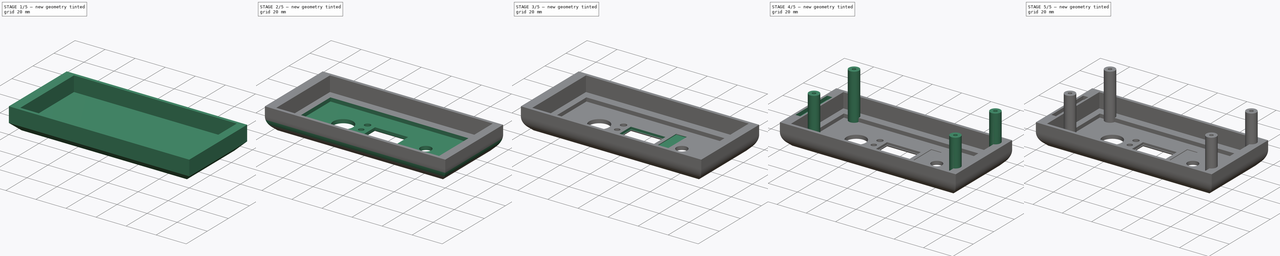
[diagram: build sequence overview — one tinted view per stage of 5, left to right]
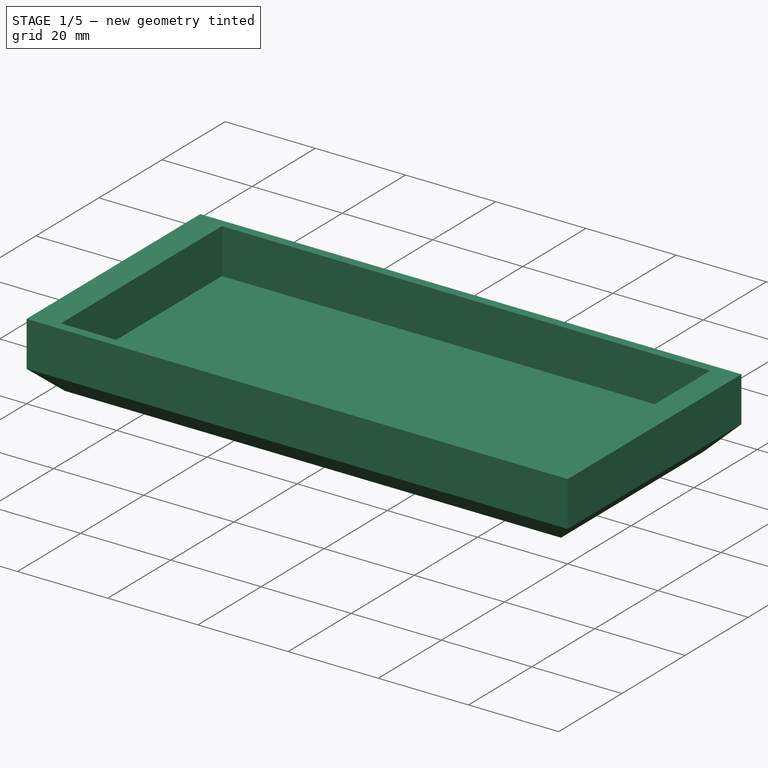
[diagram: stage 1 of 5 — iso view after this stage's code; geometry added in this stage tinted green]
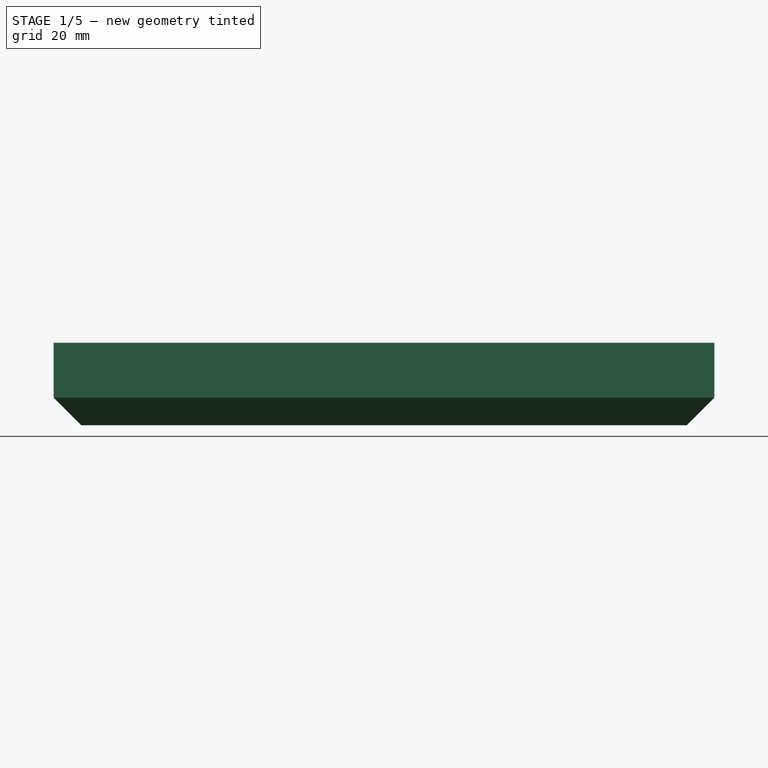
[diagram: stage 1 of 5 — front view after this stage's code; geometry added in this stage tinted green]
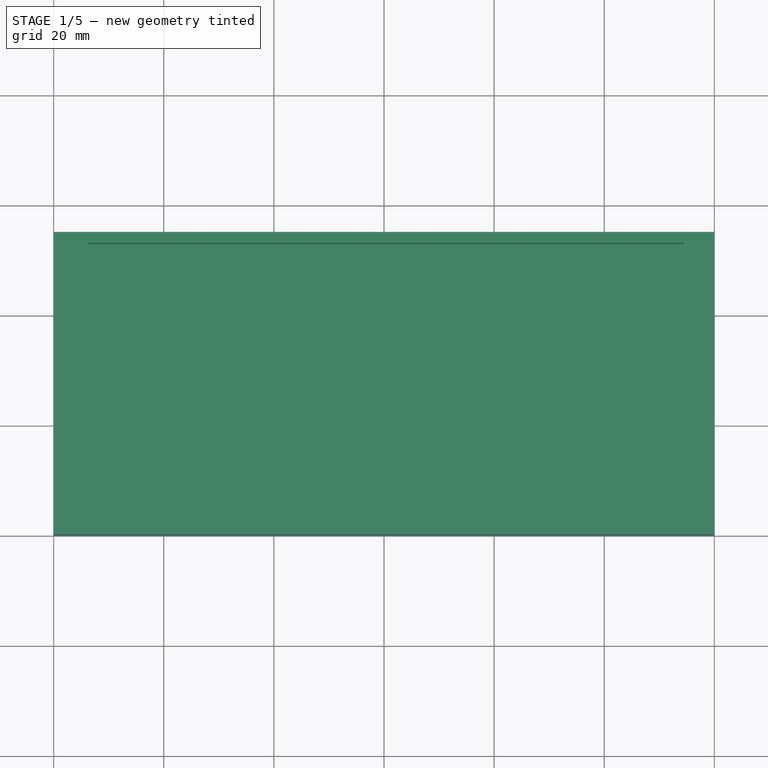
[diagram: stage 1 of 5 — top view after this stage's code; geometry added in this stage tinted green]
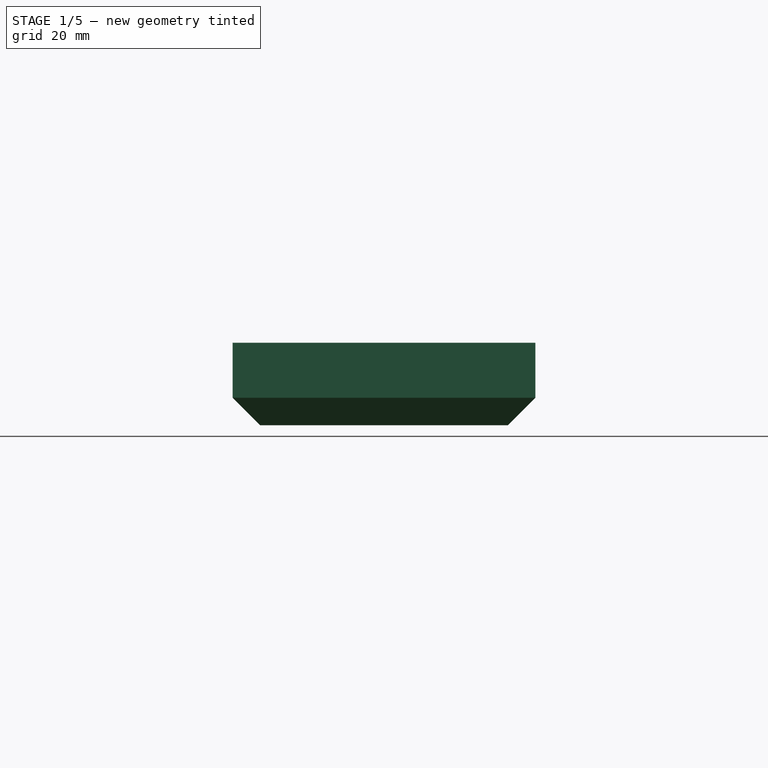
[diagram: stage 1 of 5 — right view after this stage's code; geometry added in this stage tinted green]
FCSTD DOCUMENT  (FreeCAD 0.16R6712 (Git))
Label: bolex_t12_top
License: All rights reserved
LicenseURL: http://en.wikipedia.org/wiki/All_rights_reserved
objects: Sketcher::SketchObject×9, PartDesign::Pocket×8, PartDesign::Fillet×3, PartDesign::Chamfer×2, Part::Box×1, PartDesign::Pad×1, Part::Part2DObjectPython×1, Part::Extrusion×1, Part::Cut×1
note: 36 computed .brp shape members not serialized (recipe doc carries the construction recipe); baked Part::Feature solids carry a one-line shape summary decoded from their .brp

FEATURE [Part::Box] Box  label="Cubo"
  Height = 15
  Length = 120
  Width = 55
FEATURE [Sketcher::SketchObject] Sketch
  Placement = pos=(0,0,15) rot=(0,0,1;0rad)
  Support = -> Box [Face6]
  sketch-geometry (17):
    g0: LineSegment [constr] StartX=0 StartY=40 StartZ=0 EndX=1.5 EndY=40 EndZ=0
    g1: LineSegment [constr] StartX=1.5 StartY=40 StartZ=0 EndX=1.5 EndY=42 EndZ=0
    g2: LineSegment [constr] StartX=1.5 StartY=42 StartZ=0 EndX=5 EndY=42 EndZ=0
    g3: LineSegment [constr] StartX=5 StartY=42 StartZ=0 EndX=5 EndY=40 EndZ=0
    g4: LineSegment [constr] StartX=5 StartY=40 StartZ=0 EndX=6.2 EndY=40 EndZ=0
    g5: LineSegment StartX=6.2 StartY=40 StartZ=0 EndX=6.2 EndY=53 EndZ=0
    g6: LineSegment StartX=6.2 StartY=53 StartZ=0 EndX=114.5 EndY=53 EndZ=0
    g7: LineSegment StartX=114.5 StartY=53 StartZ=0 EndX=114.5 EndY=2 EndZ=0
    g8: LineSegment StartX=114.5 StartY=2 StartZ=0 EndX=6.2 EndY=2 EndZ=0
    g9: LineSegment StartX=6.2 StartY=2 StartZ=0 EndX=6.2 EndY=13 EndZ=0
    g10: LineSegment [constr] StartX=6.2 StartY=13 StartZ=0 EndX=5 EndY=13 EndZ=0
    g11: LineSegment [constr] StartX=5 StartY=13 StartZ=0 EndX=5 EndY=11 EndZ=0
    g12: LineSegment [constr] StartX=5 StartY=11 StartZ=0 EndX=1.5 EndY=11 EndZ=0
    g13: LineSegment [constr] StartX=1.5 StartY=11 StartZ=0 EndX=1.5 EndY=13 EndZ=0
    g14: LineSegment [constr] StartX=1.5 StartY=13 StartZ=0 EndX=0 EndY=13 EndZ=0
    g15: LineSegment [constr] StartX=0 StartY=13 StartZ=0 EndX=0 EndY=40 EndZ=0
    g16: LineSegment StartX=6.2 StartY=40 StartZ=0 EndX=6.2 EndY=13 EndZ=0
  constraints (50):
    c: PointOnObject(g0,g-2)
    c: Horizontal(g0)
    c: Coincident(g0,g1)
    c: Vertical(g1)
    c: Coincident(g1,g2)
    c: Horizontal(g2)
    c: Coincident(g2,g3)
    c: Vertical(g3)
    c: Coincident(g3,g4)
    c: Horizontal(g4)
    c: Coincident(g4,g5)
    c: Vertical(g5)
    c: Coincident(g5,g6)
    c: Horizontal(g6)
    c: Coincident(g6,g7)
    c: Vertical(g7)
    c: Coincident(g7,g8)
    c: Horizontal(g8)
    c: Coincident(g8,g9)
    c: Vertical(g9)
    c: Coincident(g9,g10)
    c: Horizontal(g10)
    c: Coincident(g10,g11)
    c: Vertical(g11)
    c: Coincident(g11,g12)
    c: Horizontal(g12)
    c: Coincident(g12,g13)
    c: Vertical(g13)
    c: Coincident(g13,g14)
    c: Horizontal(g14)
    c: Coincident(g14,g15)
    c: Coincident(g15,g0)
    c: Vertical(g15)
    c: Equal(g13,g1)
    c: Equal(g1,g3)
    c: Equal(g3,g11)
    c: Equal(g2,g12)
    c: DistanceX(g2,g2) = 3.5
    c: DistanceY(g15,g15) = 27
    c: DistanceY(g12,g1) = 31
    c: DistanceX(g14,g14) = 1.5
    c: Equal(g0,g14)
    c: DistanceY(g-1,g14) = 13
    c: Equal(g10,g4)
    c: DistanceY(g7,g7) = 51
    c: DistanceX(g4,g4) = 1.2
    c: DistanceY(g9,g9) = 11
    c: DistanceX(g12,g7) = 113
    c: Coincident(g16,g4)
    c: Coincident(g16,g9)
FEATURE [PartDesign::Pocket] Pocket
  Length = 10
  Sketch = -> Sketch
  Type = 0
FEATURE [PartDesign::Chamfer] Chamfer
  Base = -> Pocket [Edge4,Edge14,Edge16,Edge5]
  Size = 5
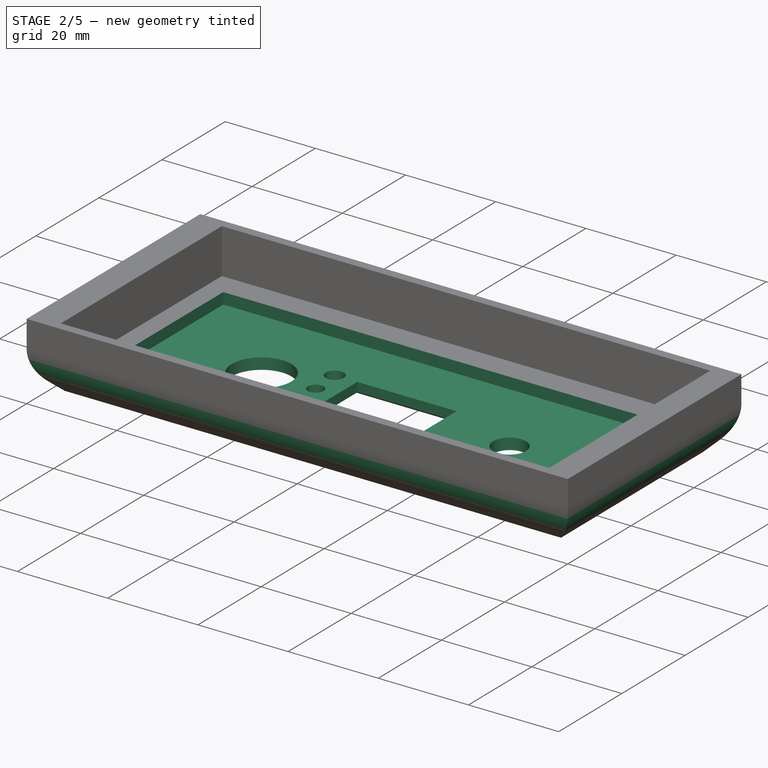
[diagram: stage 2 of 5 — iso view after this stage's code; geometry added in this stage tinted green]
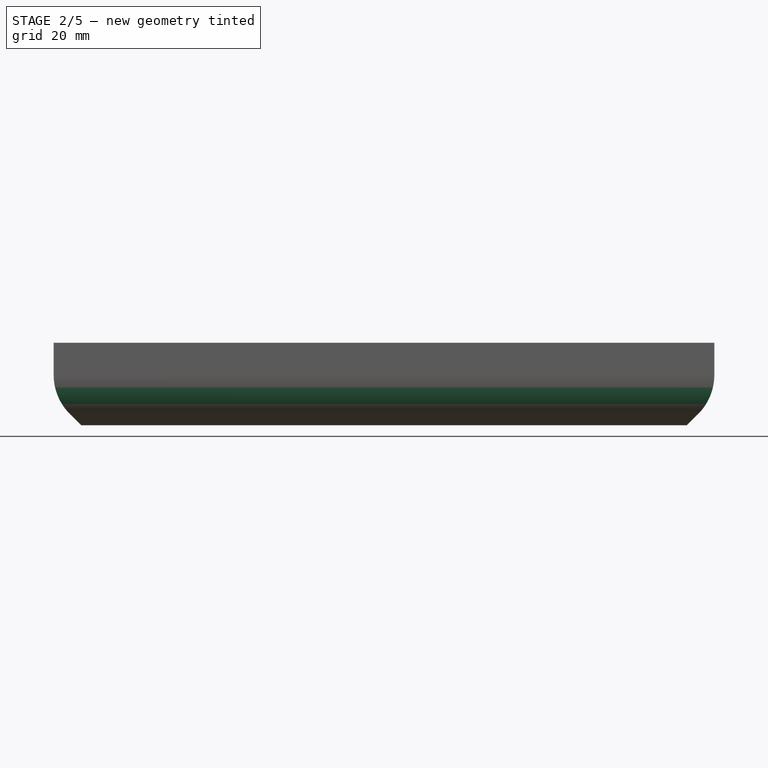
[diagram: stage 2 of 5 — front view after this stage's code; geometry added in this stage tinted green]
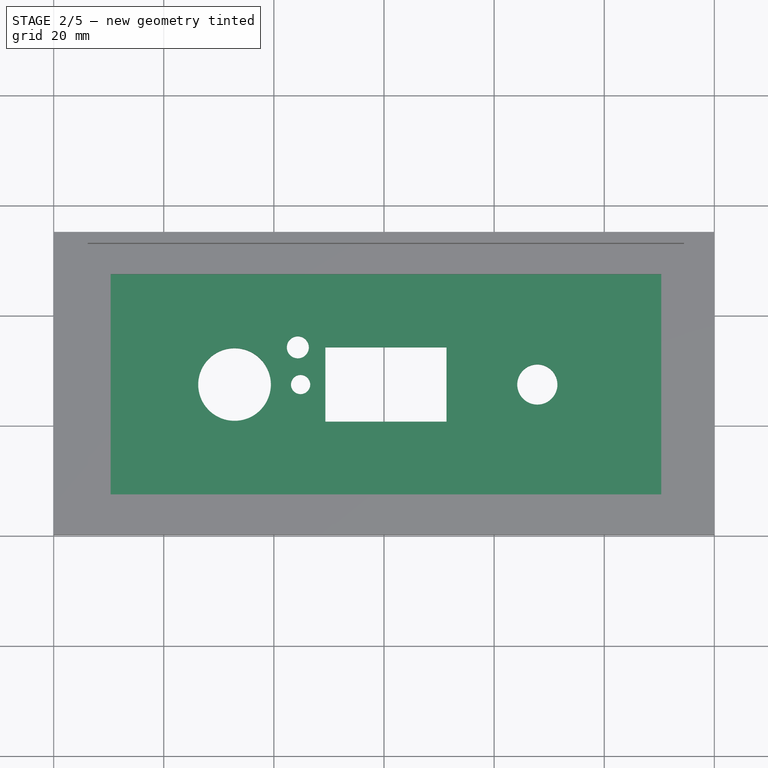
[diagram: stage 2 of 5 — top view after this stage's code; geometry added in this stage tinted green]
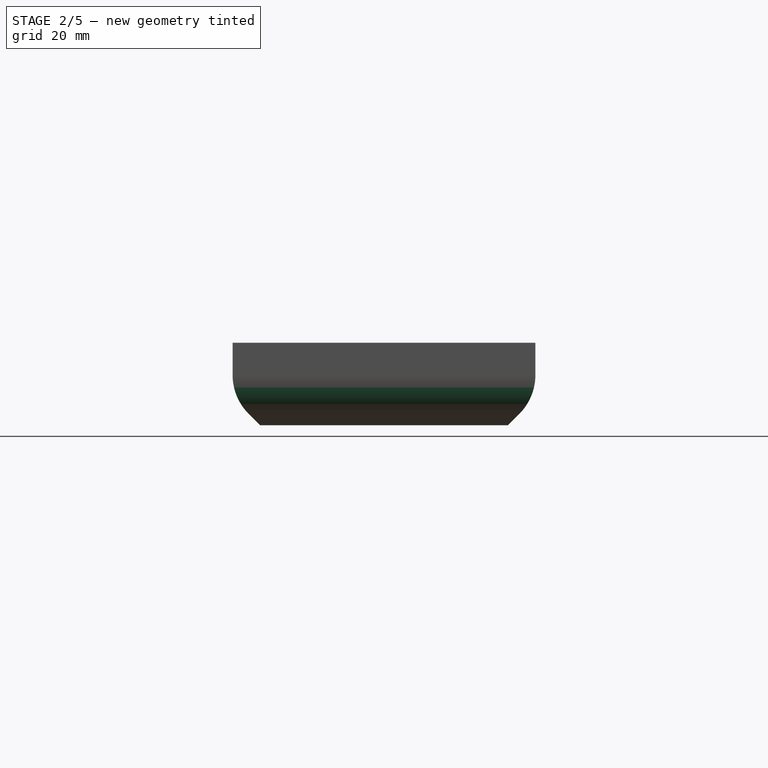
[diagram: stage 2 of 5 — right view after this stage's code; geometry added in this stage tinted green]
FEATURE [PartDesign::Fillet] Fillet
  Base = -> Chamfer [Edge6,Edge2,Edge18,Edge19]
  Radius = 10
FEATURE [Sketcher::SketchObject] Sketch001
  ExternalGeometry = -> [Fillet]
  Placement = pos=(0,0,5) rot=(0,0,1;0rad)
  Support = -> Fillet [Face18]
  sketch-geometry (13):
    g0: LineSegment StartX=49.35 StartY=34.25 StartZ=0 EndX=71.35 EndY=34.25 EndZ=0
    g1: LineSegment StartX=71.35 StartY=34.25 StartZ=0 EndX=71.35 EndY=20.75 EndZ=0
    g2: LineSegment StartX=71.35 StartY=20.75 StartZ=0 EndX=49.35 EndY=20.75 EndZ=0
    g3: LineSegment StartX=49.35 StartY=20.75 StartZ=0 EndX=49.35 EndY=34.25 EndZ=0
    g4: LineSegment [constr] StartX=6.2 StartY=53 StartZ=0 EndX=49.35 EndY=34.25 EndZ=0
    g5: LineSegment [constr] StartX=71.35 StartY=20.75 StartZ=0 EndX=114.5 EndY=2 EndZ=0
    g6: LineSegment [constr] StartX=0 StartY=27.5 StartZ=0 EndX=120 EndY=27.5 EndZ=0
    g7: Circle CenterX=32.85 CenterY=27.5 CenterZ=0 NormalX=0 NormalY=0 NormalZ=1 Radius=6.6
    g8: Circle CenterX=87.85 CenterY=27.5 CenterZ=0 NormalX=0 NormalY=0 NormalZ=1 Radius=3.65
    g9: LineSegment [constr] StartX=32.85 StartY=27.5 StartZ=0 EndX=49.35 EndY=34.25 EndZ=0
    g10: LineSegment [constr] StartX=71.35 StartY=34.25 StartZ=0 EndX=87.85 EndY=27.5 EndZ=0
    g11: Circle CenterX=44.85 CenterY=27.5 CenterZ=0 NormalX=0 NormalY=0 NormalZ=1 Radius=1.75
    g12: Circle CenterX=44.35 CenterY=34.25 CenterZ=0 NormalX=0 NormalY=0 NormalZ=1 Radius=2
  constraints (36):
    c: Coincident(g0,g1)
    c: Coincident(g1,g2)
    c: Coincident(g2,g3)
    c: Coincident(g3,g0)
    c: Horizontal(g0)
    c: Horizontal(g2)
    c: Vertical(g1)
    c: Vertical(g3)
    c: DistanceX(g0,g0) = 22  '14,5'
    c: DistanceY(g3,g3) = 13.5
    c: Coincident(g4,g-3)
    c: Coincident(g4,g0)
    c: Coincident(g5,g1)
    c: Coincident(g5,g-4)
    c: Equal(g4,g5)
    c: Parallel(g4,g5)
    c: PointOnObject(g6,g-2)
    c: Horizontal(g6)
    c: DistanceX(g6,g6) = 120
    c: Symmetric(g2,g0,g6)
    c: PointOnObject(g7,g6)
    c: PointOnObject(g8,g6)
    c: Radius(g8) = 3.65
    c: Radius(g7) = 6.6
    c: DistanceX(g7,g8) = 55
    c: Coincident(g9,g7)
    c: Coincident(g9,g0)
    c: Coincident(g10,g0)
    c: Coincident(g10,g8)
    c: Equal(g9,g10)
    c: PointOnObject(g11,g6)
    c: Radius(g11) = 1.75
    c: DistanceX(g7,g11) = 12
    c: DistanceY(g11,g12) = 6.75
    c: DistanceX(g7,g12) = 11.5
    c: Radius(g12) = 2
FEATURE [PartDesign::Pocket] Pocket001
  Length = 5
  Sketch = -> Sketch001
  Type = 1
FEATURE [Sketcher::SketchObject] Sketch002
  ExternalGeometry = -> [Pocket001]
  Placement = pos=(0,0,5) rot=(0,0,1;0rad)
  Support = -> Pocket001 [Face18]
  sketch-geometry (6):
    g0: LineSegment StartX=10.35 StartY=47.5 StartZ=0 EndX=110.35 EndY=47.5 EndZ=0
    g1: LineSegment StartX=110.35 StartY=47.5 StartZ=0 EndX=110.35 EndY=7.5 EndZ=0
    g2: LineSegment StartX=110.35 StartY=7.5 StartZ=0 EndX=10.35 EndY=7.5 EndZ=0
    g3: LineSegment StartX=10.35 StartY=7.5 StartZ=0 EndX=10.35 EndY=47.5 EndZ=0
    g4: LineSegment [constr] StartX=6.2 StartY=2 StartZ=0 EndX=10.35 EndY=7.5 EndZ=0
    g5: LineSegment [constr] StartX=110.35 StartY=47.5 StartZ=0 EndX=114.5 EndY=53 EndZ=0
  constraints (16):
    c: Coincident(g0,g1)
    c: Coincident(g1,g2)
    c: Coincident(g2,g3)
    c: Coincident(g3,g0)
    c: Horizontal(g0)
    c: Horizontal(g2)
    c: Vertical(g1)
    c: Vertical(g3)
    c: DistanceX(g0,g0) = 100
    c: DistanceY(g1,g1) = 40
    c: Coincident(g4,g-3)
    c: Coincident(g4,g2)
    c: Coincident(g5,g0)
    c: Coincident(g5,g-4)
    c: Equal(g4,g5)
    c: Parallel(g5,g4)
FEATURE [PartDesign::Pocket] Pocket002
  Length = 2.5
  Sketch = -> Sketch002
  Type = 0
FEATURE [PartDesign::Chamfer] Chamfer001
  Base = -> Pocket002 [Edge44,Edge45,Edge41,Edge40,Edge43,Edge42]
  Size = 0.5
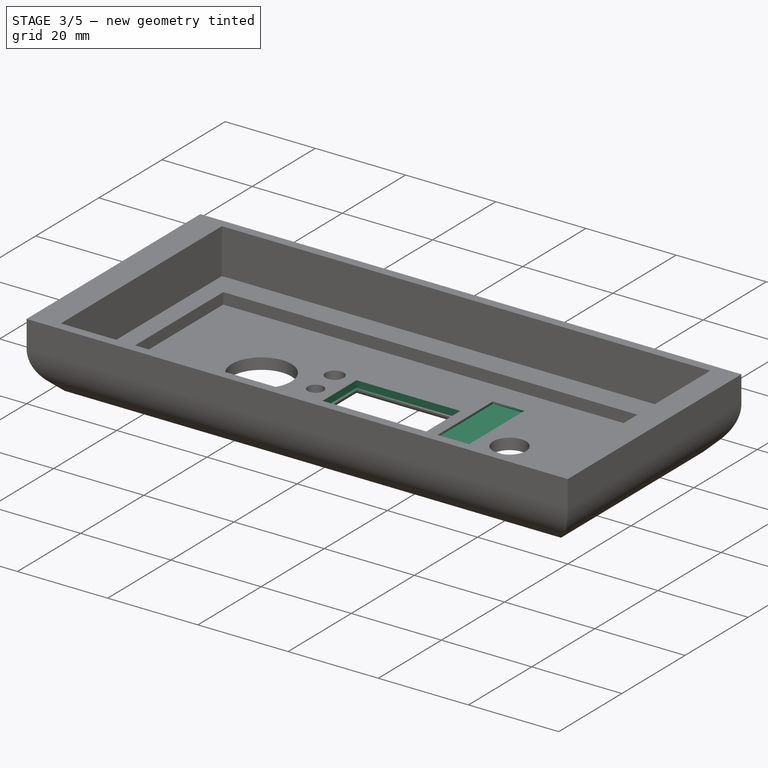
[diagram: stage 3 of 5 — iso view after this stage's code; geometry added in this stage tinted green]
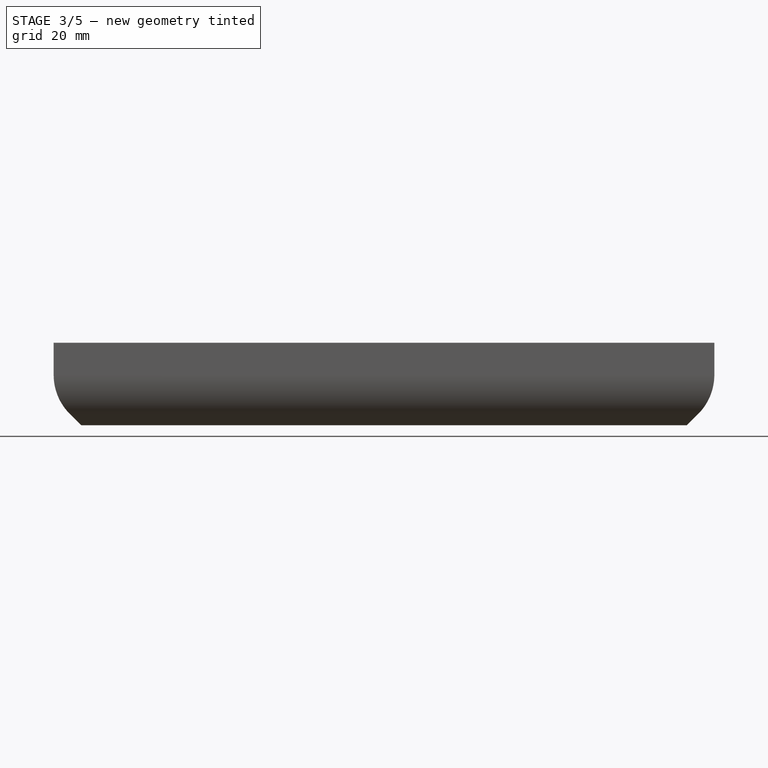
[diagram: stage 3 of 5 — front view after this stage's code; geometry added in this stage tinted green]
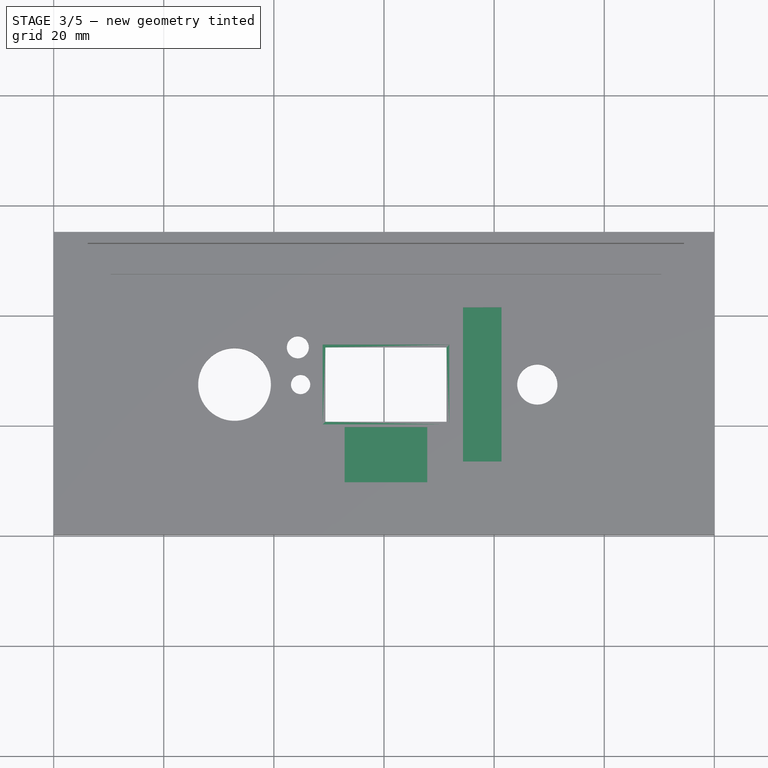
[diagram: stage 3 of 5 — top view after this stage's code; geometry added in this stage tinted green]
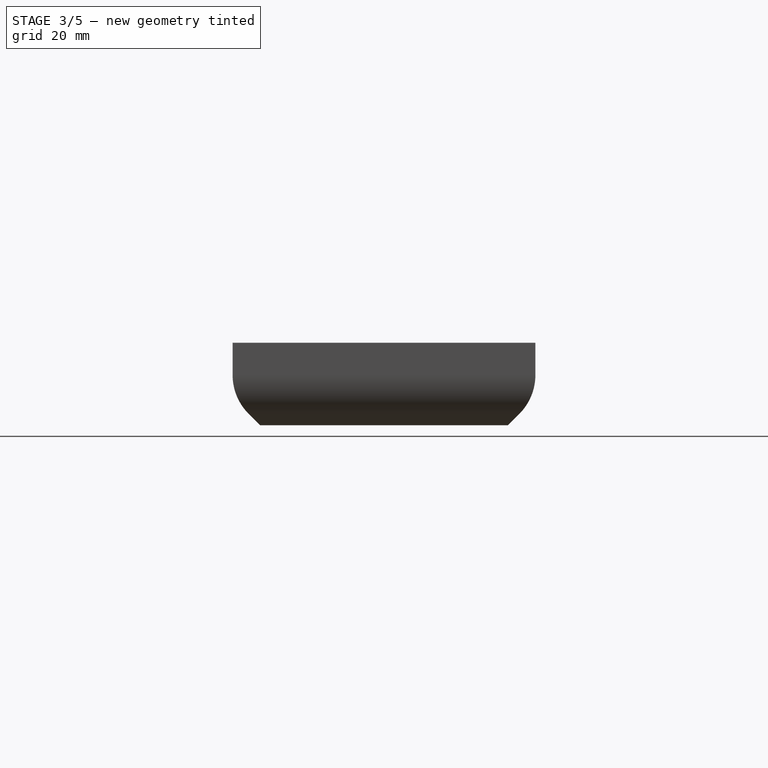
[diagram: stage 3 of 5 — right view after this stage's code; geometry added in this stage tinted green]
FEATURE [PartDesign::Fillet] Fillet001
  Base = -> Chamfer001 [Edge30,Edge34,Edge36,Edge33,Edge28,Edge14]
  Radius = 1
FEATURE [Sketcher::SketchObject] Sketch003
  ExternalGeometry = -> [Fillet001]
  Placement = pos=(0,0,2.5) rot=(0,0,1;0rad)
  Support = -> Fillet001 [Face16]
  sketch-geometry (6):
    g0: LineSegment StartX=48.85 StartY=34.75 StartZ=0 EndX=71.85 EndY=34.75 EndZ=0
    g1: LineSegment StartX=71.85 StartY=34.75 StartZ=0 EndX=71.85 EndY=20.25 EndZ=0
    g2: LineSegment StartX=71.85 StartY=20.25 StartZ=0 EndX=48.85 EndY=20.25 EndZ=0
    g3: LineSegment StartX=48.85 StartY=20.25 StartZ=0 EndX=48.85 EndY=34.75 EndZ=0
    g4: LineSegment [constr] StartX=49.35 StartY=34.25 StartZ=0 EndX=48.85 EndY=34.75 EndZ=0
    g5: LineSegment [constr] StartX=71.85 StartY=20.25 StartZ=0 EndX=71.35 EndY=20.75 EndZ=0
  constraints (16):
    c: Coincident(g0,g1)
    c: Coincident(g1,g2)
    c: Coincident(g2,g3)
    c: Coincident(g3,g0)
    c: Horizontal(g0)
    c: Horizontal(g2)
    c: Vertical(g1)
    c: Vertical(g3)
    c: DistanceX(g0,g0) = 23
    c: DistanceY(g1,g1) = 14.5
    c: Coincident(g4,g-3)
    c: Coincident(g4,g0)
    c: Coincident(g5,g1)
    c: Coincident(g5,g-4)
    c: Equal(g4,g5)
    c: Parallel(g5,g4)
FEATURE [PartDesign::Pocket] Pocket003
  Length = 1.5
  Sketch = -> Sketch003
  Type = 0
FEATURE [Sketcher::SketchObject] Sketch004
  ExternalGeometry = -> [Pocket003]
  Placement = pos=(0,0,2.5) rot=(0,0,1;0rad)
  Support = -> Pocket003 [Face16]
  sketch-geometry (10):
    g0: LineSegment StartX=52.85 StartY=19.75 StartZ=0 EndX=67.85 EndY=19.75 EndZ=0
    g1: LineSegment StartX=67.85 StartY=19.75 StartZ=0 EndX=67.85 EndY=9.75 EndZ=0
    g2: LineSegment StartX=67.85 StartY=9.75 StartZ=0 EndX=52.85 EndY=9.75 EndZ=0
    g3: LineSegment StartX=52.85 StartY=9.75 StartZ=0 EndX=52.85 EndY=19.75 EndZ=0
    g4: LineSegment StartX=74.35 StartY=41.5 StartZ=0 EndX=81.35 EndY=41.5 EndZ=0
    g5: LineSegment StartX=81.35 StartY=41.5 StartZ=0 EndX=81.35 EndY=13.5 EndZ=0
    g6: LineSegment StartX=81.35 StartY=13.5 StartZ=0 EndX=74.35 EndY=13.5 EndZ=0
    g7: LineSegment StartX=74.35 StartY=13.5 StartZ=0 EndX=74.35 EndY=41.5 EndZ=0
    g8: LineSegment [constr] StartX=52.85 StartY=19.75 StartZ=0 EndX=71.85 EndY=34.75 EndZ=0
    g9: LineSegment [constr] StartX=67.85 StartY=19.75 StartZ=0 EndX=48.85 EndY=34.75 EndZ=0
  constraints (28):
    c: Coincident(g0,g1)
    c: Coincident(g1,g2)
    c: Coincident(g2,g3)
    c: Coincident(g3,g0)
    c: Horizontal(g0)
    c: Horizontal(g2)
    c: Vertical(g1)
    c: Vertical(g3)
    c: Coincident(g4,g5)
    c: Coincident(g5,g6)
    c: Coincident(g6,g7)
    c: Coincident(g7,g4)
    c: Horizontal(g4)
    c: Horizontal(g6)
    c: Vertical(g5)
    c: Vertical(g7)
    c: DistanceX(g4,g4) = 7
    c: DistanceY(g7,g7) = 28
    c: DistanceX(g5,g-3) = 6.5
    c: DistanceY(g5,g-3) = 14
    c: DistanceY(g3,g3) = 10
    c: DistanceX(g0,g0) = 15
    c: Coincident(g8,g0)
    c: Coincident(g8,g-4)
    c: Coincident(g9,g0)
    c: Coincident(g9,g-4)
    c: Equal(g9,g8)
    c: DistanceY(g0,g8) = 15
FEATURE [PartDesign::Pocket] Pocket004
  Length = 0.5
  Sketch = -> Sketch004
  Type = 0
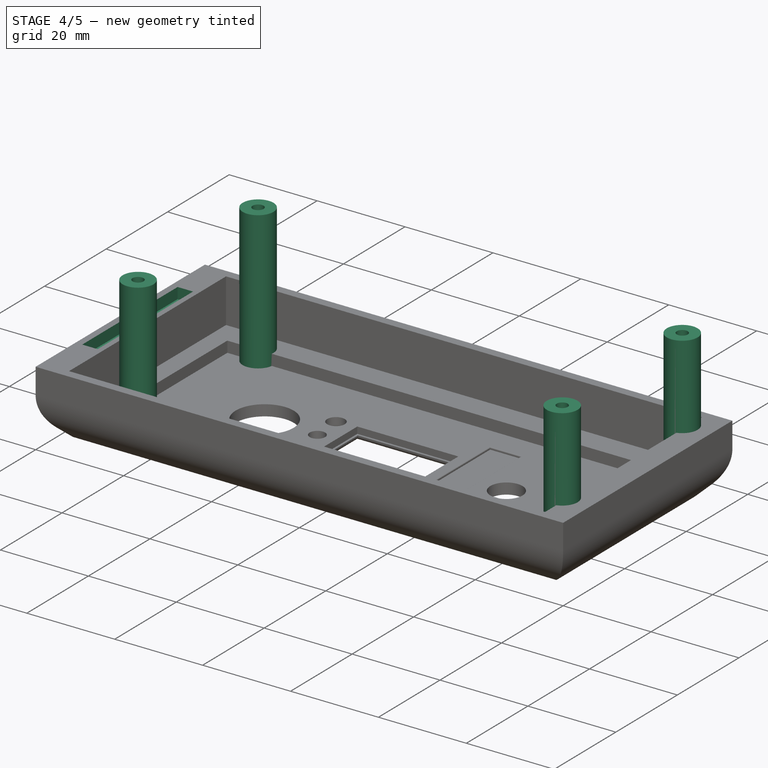
[diagram: stage 4 of 5 — iso view after this stage's code; geometry added in this stage tinted green]
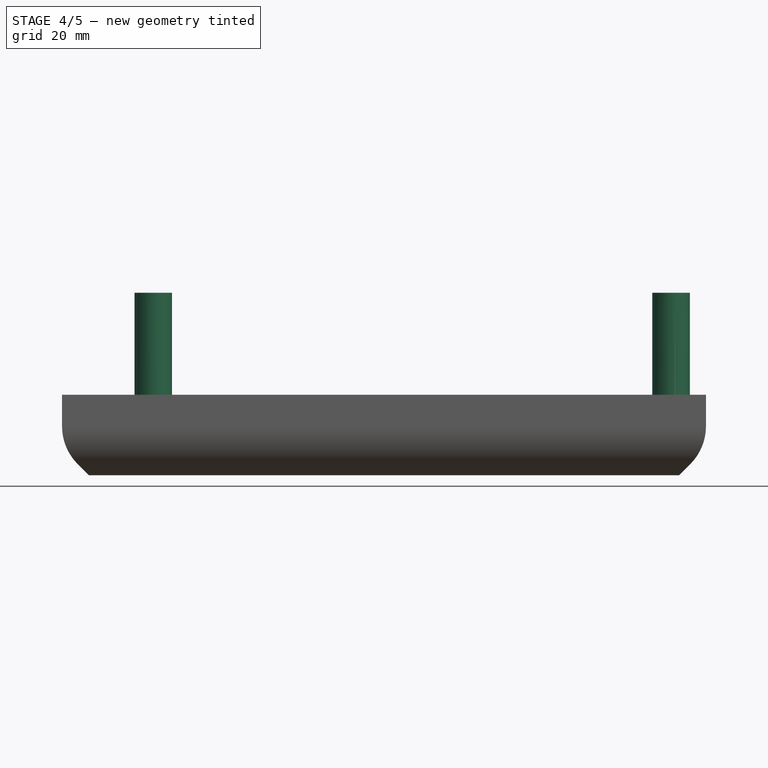
[diagram: stage 4 of 5 — front view after this stage's code; geometry added in this stage tinted green]
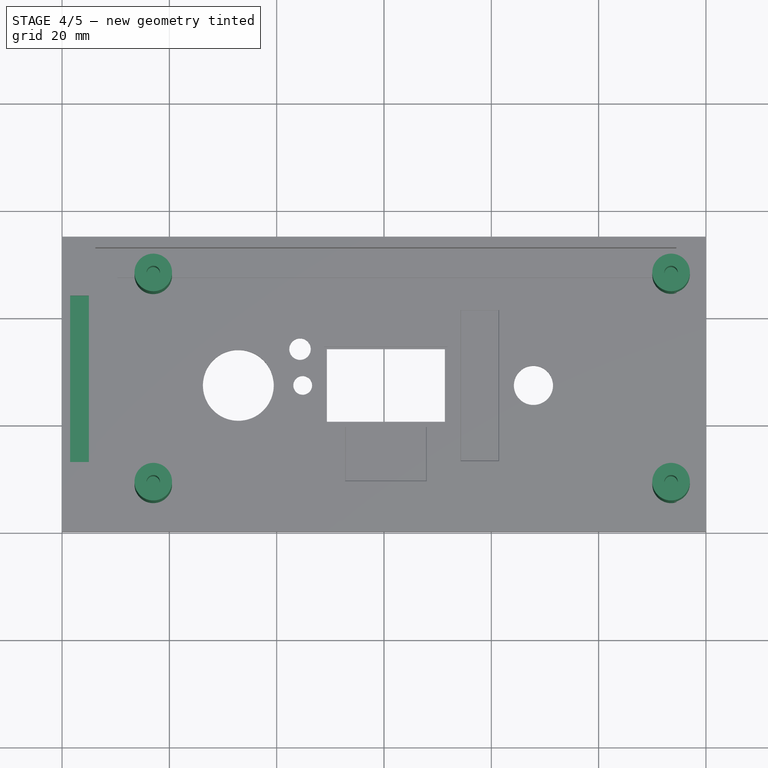
[diagram: stage 4 of 5 — top view after this stage's code; geometry added in this stage tinted green]
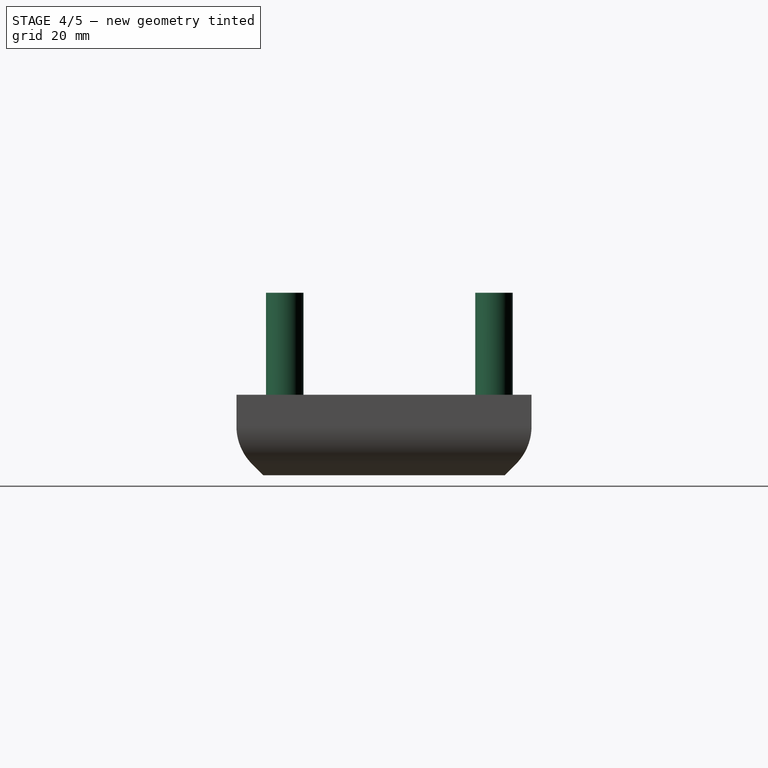
[diagram: stage 4 of 5 — right view after this stage's code; geometry added in this stage tinted green]
FEATURE [PartDesign::Fillet] Fillet002
  Base = -> Pocket004 [Edge53,Edge50,Edge52,Edge55,Edge57,Edge54,Edge51]
  Radius = 0.2
FEATURE [Sketcher::SketchObject] Sketch005
  Placement = pos=(0,0,2.5) rot=(0,0,1;0rad)
  Support = -> Fillet002 [Face1]
  sketch-geometry (9):
    g0: LineSegment [constr] StartX=17 StartY=48 StartZ=0 EndX=113.5 EndY=48 EndZ=0
    g1: LineSegment [constr] StartX=113.5 StartY=48 StartZ=0 EndX=113.5 EndY=9 EndZ=0
    g2: LineSegment [constr] StartX=113.5 StartY=9 StartZ=0 EndX=17 EndY=9 EndZ=0
    g3: LineSegment [constr] StartX=17 StartY=9 StartZ=0 EndX=17 EndY=48 EndZ=0
    g4: Circle CenterX=17 CenterY=48 CenterZ=0 NormalX=0 NormalY=0 NormalZ=1 Radius=3.5
    g5: Circle CenterX=17 CenterY=9 CenterZ=0 NormalX=0 NormalY=0 NormalZ=1 Radius=3.5
    g6: Circle CenterX=113.5 CenterY=48 CenterZ=0 NormalX=0 NormalY=0 NormalZ=1 Radius=3.5
    g7: Circle CenterX=113.5 CenterY=9 CenterZ=0 NormalX=0 NormalY=0 NormalZ=1 Radius=3.5
    g8: LineSegment [constr] StartX=-0.770126 StartY=54.8838 StartZ=0 EndX=-0.770126 EndY=47.8838 EndZ=0
  constraints (22):
    c: Coincident(g0,g1)
    c: Coincident(g1,g2)
    c: Coincident(g2,g3)
    c: Coincident(g3,g0)
    c: Horizontal(g0)
    c: Horizontal(g2)
    c: Vertical(g1)
    c: Vertical(g3)
    c: Coincident(g4,g0)
    c: Coincident(g5,g2)
    c: Coincident(g6,g0)
    c: Coincident(g7,g1)
    c: Radius(g5) = 3.5
    c: Equal(g5,g4)
    c: Equal(g5,g6)
    c: Equal(g5,g7)
    c: DistanceY(g3,g3) = 39
    c: DistanceX(g0,g0) = 96.5
    c: DistanceX(g-1,g2) = 17
    c: DistanceY(g-1,g2) = 9
    c: Vertical(g8)
    c: DistanceY(g8,g8) = 7
FEATURE [PartDesign::Pad] Pad
  Length = 31.5
  Length2 = 100
  Sketch = -> Sketch005
  Type = 0
FEATURE [Sketcher::SketchObject] Sketch006
  ExternalGeometry = -> [Pad]
  Placement = pos=(0,0,15) rot=(0,0,1;0rad)
  Support = -> Pad [Face35]
  sketch-geometry (4):
    g0: LineSegment StartX=1.5 StartY=44 StartZ=0 EndX=5 EndY=44 EndZ=0
    g1: LineSegment StartX=5 StartY=44 StartZ=0 EndX=5 EndY=13 EndZ=0
    g2: LineSegment StartX=5 StartY=13 StartZ=0 EndX=1.5 EndY=13 EndZ=0
    g3: LineSegment StartX=1.5 StartY=13 StartZ=0 EndX=1.5 EndY=44 EndZ=0
  constraints (12):
    c: Coincident(g0,g1)
    c: Coincident(g1,g2)
    c: Coincident(g2,g3)
    c: Coincident(g3,g0)
    c: Horizontal(g0)
    c: Horizontal(g2)
    c: Vertical(g1)
    c: Vertical(g3)
    c: DistanceX(g-1,g2) = 1.5
    c: DistanceY(g0,g-3) = 11
    c: DistanceY(g3,g3) = 31
    c: DistanceX(g0,g0) = 3.5
FEATURE [PartDesign::Pocket] Pocket005
  Length = 2.5
  Sketch = -> Sketch006
  Type = 0
FEATURE [Sketcher::SketchObject] Sketch007
  ExternalGeometry = -> [Pocket005]
  Placement = pos=(0,0,34) rot=(0,0,1;0rad)
  Support = -> Pocket005 [Face34]
  sketch-geometry (4):
    g0: Circle CenterX=17 CenterY=48 CenterZ=0 NormalX=0 NormalY=0 NormalZ=1 Radius=1.25
    g1: Circle CenterX=17 CenterY=9 CenterZ=0 NormalX=0 NormalY=0 NormalZ=1 Radius=1.25
    g2: Circle CenterX=113.5 CenterY=48 CenterZ=0 NormalX=0 NormalY=0 NormalZ=1 Radius=1.25
    g3: Circle CenterX=113.5 CenterY=9 CenterZ=0 NormalX=0 NormalY=0 NormalZ=1 Radius=1.25
  constraints (8):
    c: Coincident(g0,g-3)
    c: Coincident(g1,g-6)
    c: Coincident(g2,g-4)
    c: Coincident(g3,g-5)
    c: Radius(g1) = 1.25
    c: Equal(g1,g0)
    c: Equal(g1,g2)
    c: Equal(g1,g3)
FEATURE [PartDesign::Pocket] Pocket006
  Length = 15
  Sketch = -> Sketch007
  Type = 0
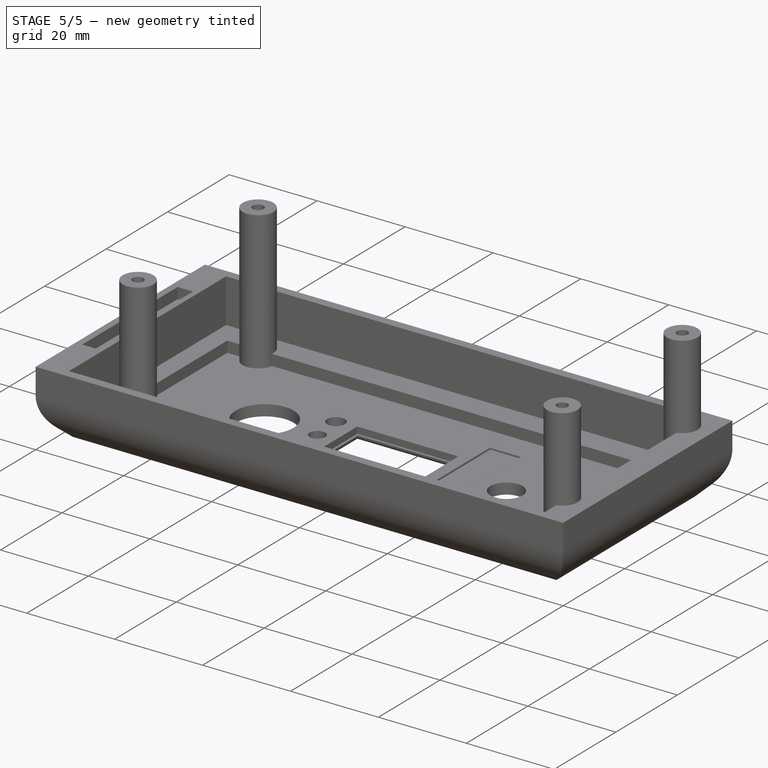
[diagram: stage 5 of 5 — iso view after this stage's code; geometry added in this stage tinted green]
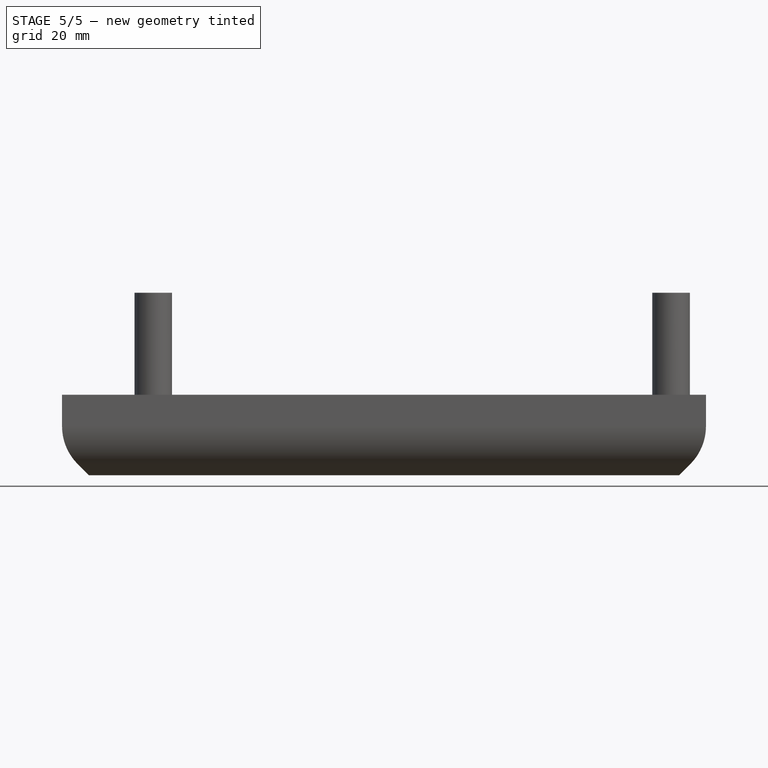
[diagram: stage 5 of 5 — front view after this stage's code; geometry added in this stage tinted green]
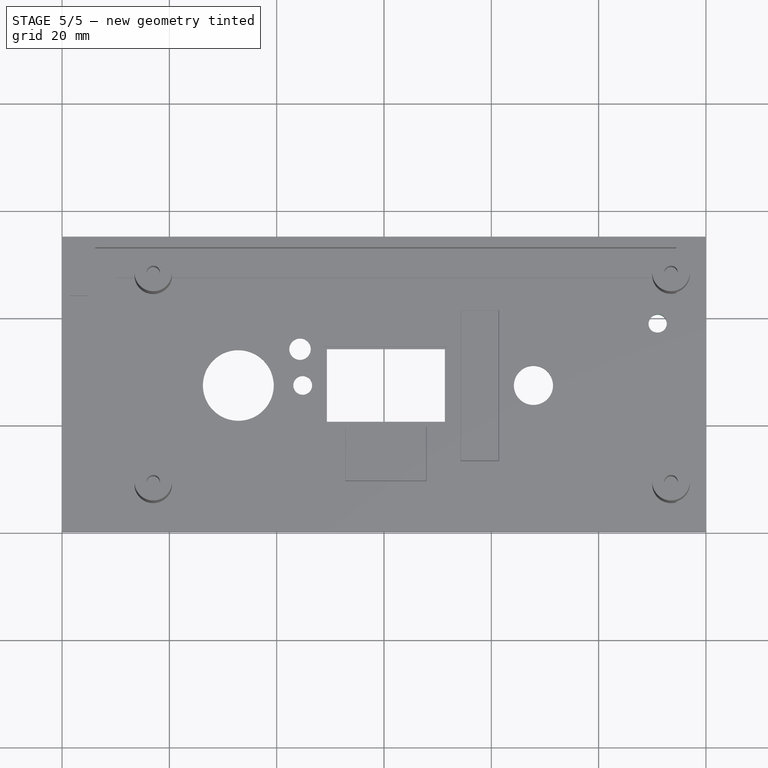
[diagram: stage 5 of 5 — top view after this stage's code; geometry added in this stage tinted green]
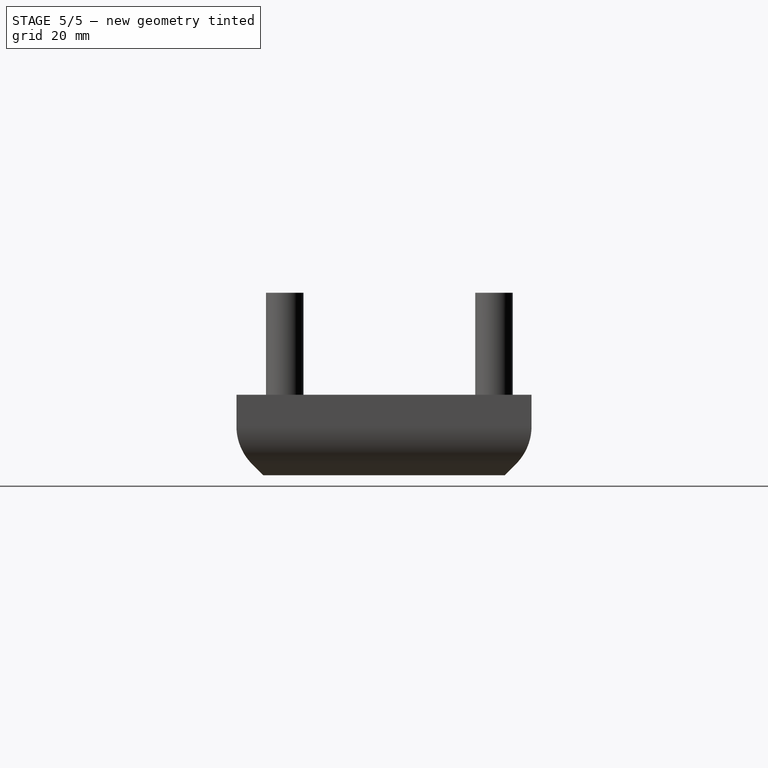
[diagram: stage 5 of 5 — right view after this stage's code; geometry added in this stage tinted green]
FEATURE [Part::Part2DObjectPython] ShapeString  # Draft 2D object (typed FeaturePython)
  FontFile = <userpath>/Documentos/fuentes/Baloo-Regular.ttf
  Placement = pos=(11.632,13.8702,0) rot=(1,0,0;3.14159rad)
  Size = 5
  String = ¡¡¡OLLO!!!  ¡¡¡MORDE!!!
  Tracking = 0
FEATURE [Part::Extrusion] Extrude
  Base = -> ShapeString
  Dir = (0,0,0.75)
  Solid = true
FEATURE [Part::Cut] Cut
  Base = -> Pocket006
  Tool = -> Extrude
FEATURE [Sketcher::SketchObject] Sketch008
  ExternalGeometry = -> [Cut]
  Placement = pos=(0,0,2.5) rot=(0,0,1;0rad)
  Support = -> Cut [Face4]
  sketch-geometry (1):
    g0: Circle CenterX=111 CenterY=39 CenterZ=0 NormalX=0 NormalY=0 NormalZ=1 Radius=1.7
  constraints (3):
    c: DistanceX(g0,g-3) = 3.5
    c: DistanceY(g-3,g0) = 37
    c: Radius(g0) = 1.7
FEATURE [PartDesign::Pocket] Pocket007
  Length = 5
  Midplane = true
  Sketch = -> Sketch008
  Type = 0
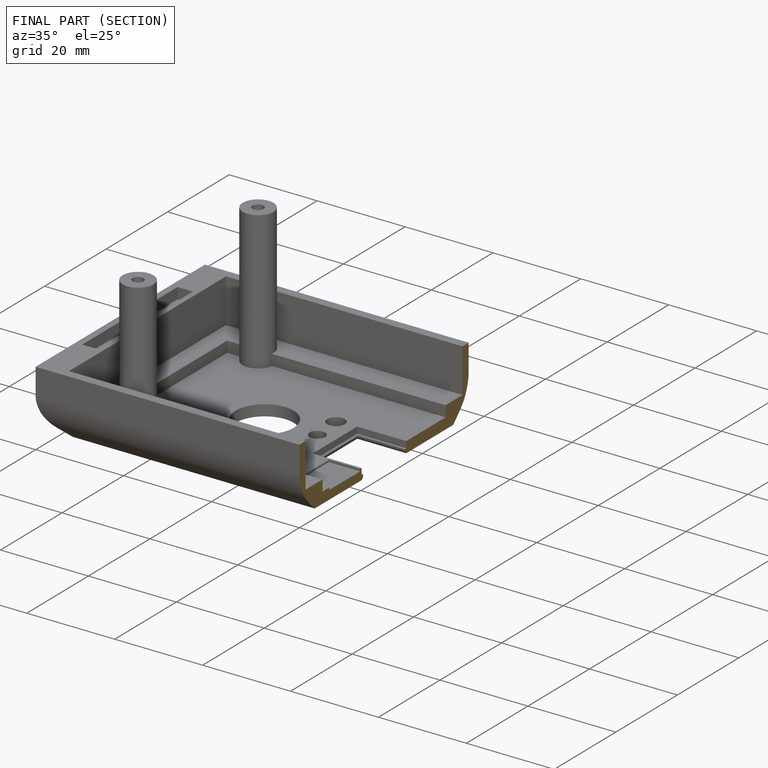
[diagram: finished part — half-section view (interior)]
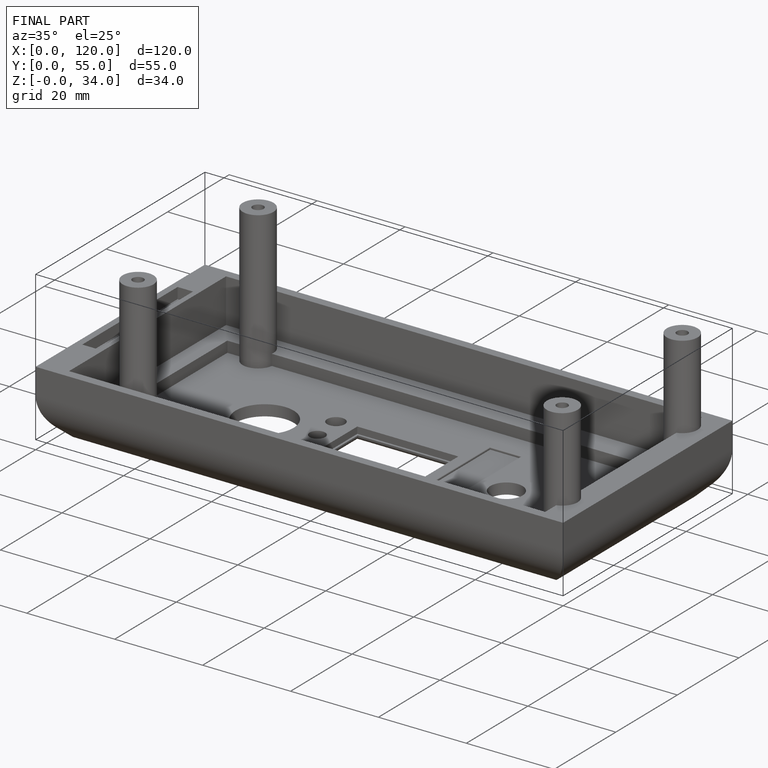
[diagram: finished part — iso view with bounding-box wireframe]
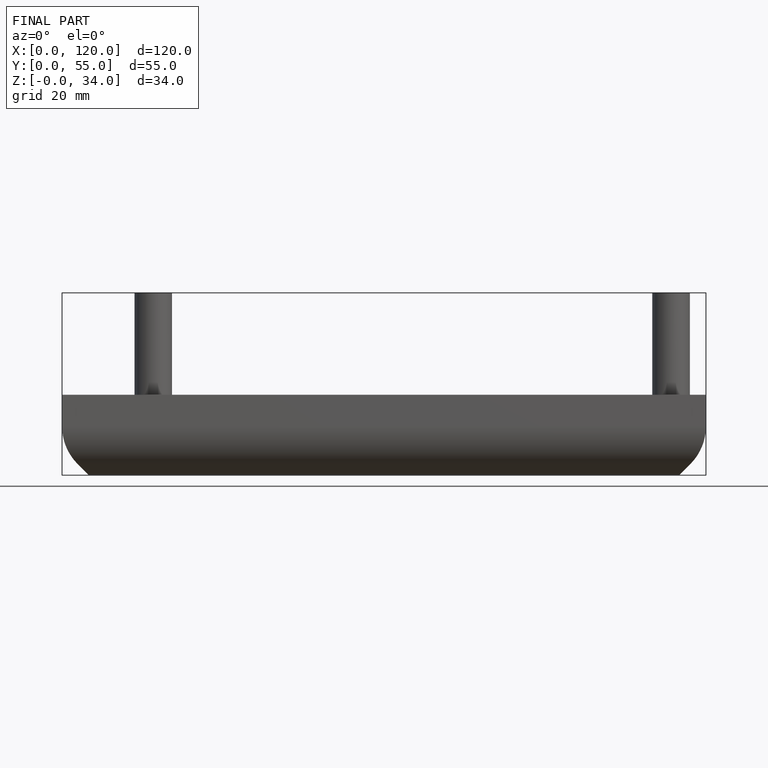
[diagram: finished part — front view with bounding-box wireframe]
